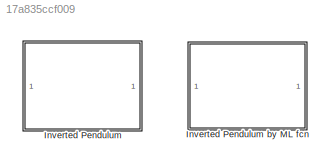
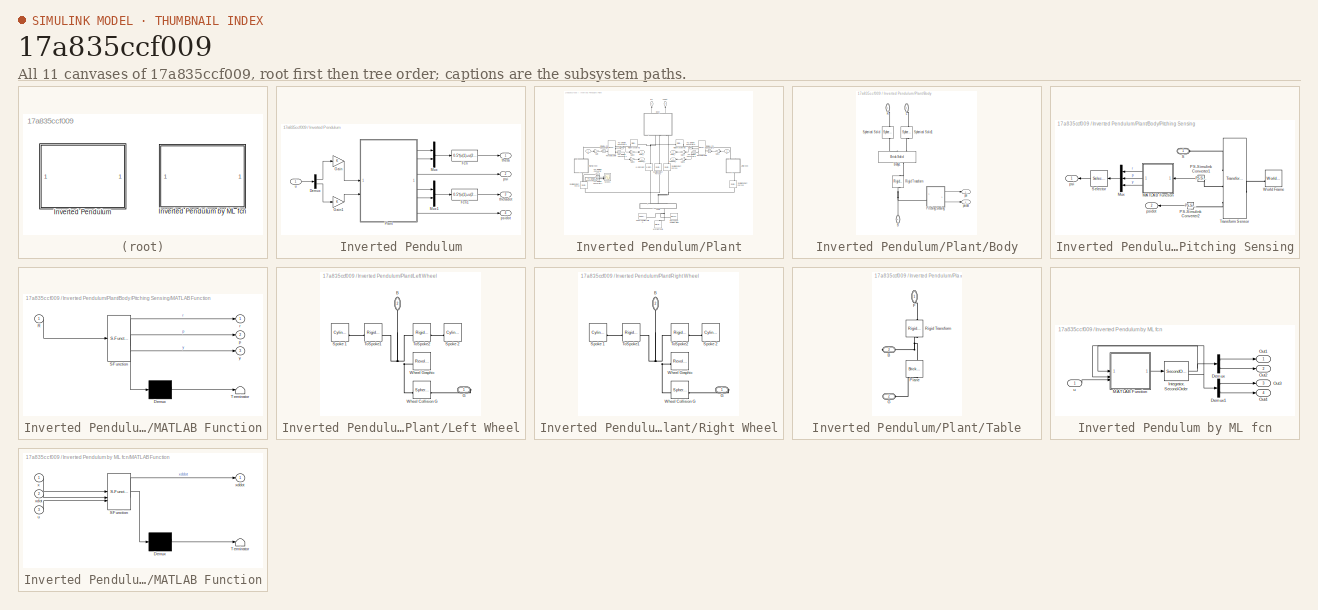
[diagram: thumbnail index - all 11 canvases of the model, root first then tree order]
MODEL slx_17a835ccf009
KIND library
CONFIG AbsTol = auto
CONFIG EnableMultiTasking = off
CONFIG FixedStep = auto
CONFIG MaxStep = auto
CONFIG MinStep = auto
CONFIG RelTol = 1e-3
CONFIG SampleTimeConstraint = Unconstrained
CONFIG SolverName = VariableStepAuto
CONFIG StartTime = 0.0
CONFIG StopTime = 10.0
BLOCK [SubSystem] Inverted Pendulum
BLOCK [SubSystem] Inverted Pendulum by ML fcn
BLOCK [Demux] Inverted Pendulum by ML fcn/Demux
  Outputs = 2
BLOCK [Demux] Inverted Pendulum by ML fcn/Demux1
  Outputs = 2
BLOCK [SecondOrderIntegrator] Inverted Pendulum by ML fcn/Integrator, Second-Order
  ICDXDT = [0;0]
  ICX = [0;psi0*pi/180]
BLOCK [SubSystem] Inverted Pendulum by ML fcn/MATLAB Function
  ErrorFcn = Stateflow.Translate.translate
  PermitHierarchicalResolution = ExplicitOnly
  SFBlockType = MATLAB Function
  TreatAsAtomicUnit = on
BLOCK [Demux] Inverted Pendulum by ML fcn/MATLAB Function/ Demux 
  Outputs = 1
BLOCK [S-Function] Inverted Pendulum by ML fcn/MATLAB Function/ SFunction 
  EnableBusSupport = off
  FunctionName = sf_sfun
  Parameters = Jpsi,Jw,K,L,R,fm,fw,g,mb,mw
  PortCounts = [3 2]
  SFcnIsStateOwnerBlock = off
  SFunctionDeploymentMode = off
  Tag = Stateflow S-Function 2
BLOCK [Terminator] Inverted Pendulum by ML fcn/MATLAB Function/ Terminator 
BLOCK [Inport] Inverted Pendulum by ML fcn/MATLAB Function/u
  Port = 3
BLOCK [Inport] Inverted Pendulum by ML fcn/MATLAB Function/x
BLOCK [Outport] Inverted Pendulum by ML fcn/MATLAB Function/xddot
BLOCK [Inport] Inverted Pendulum by ML fcn/MATLAB Function/xdot
  Port = 2
BLOCK [Outport] Inverted Pendulum by ML fcn/Out1
BLOCK [Outport] Inverted Pendulum by ML fcn/Out2
  Port = 2
BLOCK [Outport] Inverted Pendulum by ML fcn/Out3
  Port = 3
BLOCK [Outport] Inverted Pendulum by ML fcn/Out4
  Port = 4
BLOCK [Inport] Inverted Pendulum by ML fcn/u
BLOCK [Demux] Inverted Pendulum/Demux
  Outputs = 2
BLOCK [Fcn] Inverted Pendulum/Fcn
  Expr = 0.5*(u(1)+u(2))
BLOCK [Fcn] Inverted Pendulum/Fcn1
  Expr = 0.5*(u(1)+u(2))
BLOCK [Gain] Inverted Pendulum/Gain
  Gain = K
BLOCK [Gain] Inverted Pendulum/Gain1
  Gain = K
BLOCK [Mux] Inverted Pendulum/Mux
  DisplayOption = bar
  Inputs = 2
BLOCK [Mux] Inverted Pendulum/Mux1
  DisplayOption = bar
  Inputs = 2
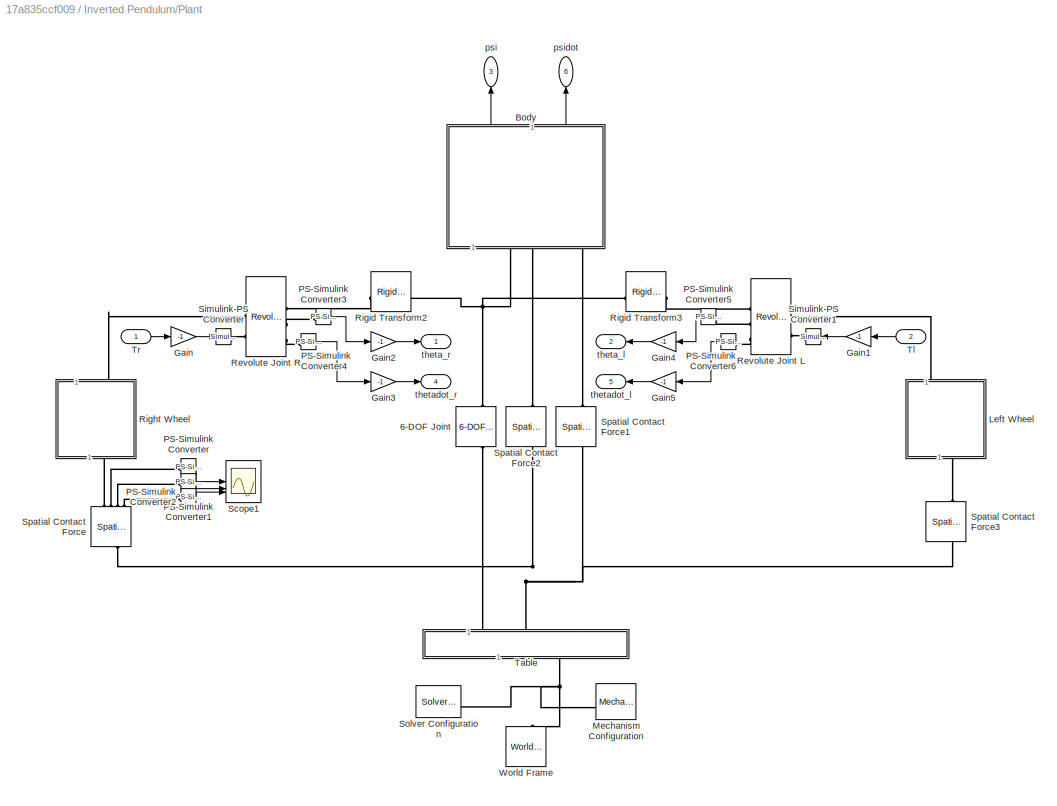
BLOCK [SubSystem] Inverted Pendulum/Plant
BLOCK [Reference] Inverted Pendulum/Plant/6-DOF Joint  REF=sm_lib/Joints/6-DOF Joint
  NameLocation = right
  SourceBlock = sm_lib/Joints/6-DOF Joint
  SourceType = 6-DOF Joint
BLOCK [SubSystem] Inverted Pendulum/Plant/Body
  NameLocation = right
BLOCK [PMIOPort] Inverted Pendulum/Plant/Body/B
  NameLocation = right
  Side = Left
BLOCK [Reference] Inverted Pendulum/Plant/Body/Body1  REF=sm_lib/Body Elements/Brick Solid
  NameLocation = left
  SourceBlock = sm_lib/Body Elements/Brick Solid
  SourceType = Brick Solid
BLOCK [PMIOPort] Inverted Pendulum/Plant/Body/L
  NameLocation = right
  Port = 3
  Side = Left
BLOCK [SubSystem] Inverted Pendulum/Plant/Body/Pitching Sensing
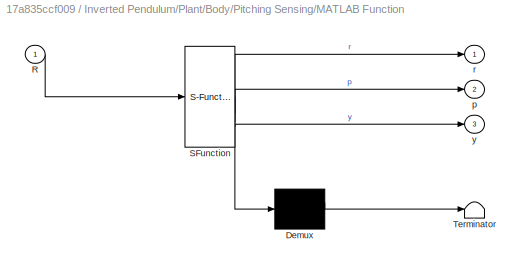
BLOCK [SubSystem] Inverted Pendulum/Plant/Body/Pitching Sensing/MATLAB Function
  ErrorFcn = Stateflow.Translate.translate
  NameLocation = top
  PermitHierarchicalResolution = ExplicitOnly
  SFBlockType = MATLAB Function
  TreatAsAtomicUnit = on
BLOCK [Demux] Inverted Pendulum/Plant/Body/Pitching Sensing/MATLAB Function/ Demux 
  Outputs = 1
BLOCK [S-Function] Inverted Pendulum/Plant/Body/Pitching Sensing/MATLAB Function/ SFunction 
  EnableBusSupport = off
  FunctionName = sf_sfun
  PortCounts = [1 4]
  SFcnIsStateOwnerBlock = off
  SFunctionDeploymentMode = off
  Tag = Stateflow S-Function 3
BLOCK [Terminator] Inverted Pendulum/Plant/Body/Pitching Sensing/MATLAB Function/ Terminator 
BLOCK [Inport] Inverted Pendulum/Plant/Body/Pitching Sensing/MATLAB Function/R
BLOCK [Outport] Inverted Pendulum/Plant/Body/Pitching Sensing/MATLAB Function/p
  Port = 2
BLOCK [Outport] Inverted Pendulum/Plant/Body/Pitching Sensing/MATLAB Function/r
BLOCK [Outport] Inverted Pendulum/Plant/Body/Pitching Sensing/MATLAB Function/y
  Port = 3
BLOCK [Mux] Inverted Pendulum/Plant/Body/Pitching Sensing/Mux
  DisplayOption = bar
  Inputs = 3
  NameLocation = top
BLOCK [Reference] Inverted Pendulum/Plant/Body/Pitching Sensing/PS-Simulink Converter1  REF=nesl_utility/PS-Simulink
Converter
  NameLocation = top
  SourceBlock = nesl_utility/PS-Simulink\nConverter
  SourceType = PS-Simulink\nConverter
BLOCK [Reference] Inverted Pendulum/Plant/Body/Pitching Sensing/PS-Simulink Converter2  REF=nesl_utility/PS-Simulink
Converter
  NameLocation = top
  SourceBlock = nesl_utility/PS-Simulink\nConverter
  SourceType = PS-Simulink\nConverter
BLOCK [PMIOPort] Inverted Pendulum/Plant/Body/Pitching Sensing/S
  Side = Left
BLOCK [Selector] Inverted Pendulum/Plant/Body/Pitching Sensing/Selector
  IndexOptions = Index vector (dialog)
  Indices = 2
  InputPortWidth = 3
  NameLocation = top
  OutputSizes = 1
BLOCK [Reference] Inverted Pendulum/Plant/Body/Pitching Sensing/Transform Sensor  REF=sm_lib/Frames and
Transforms/Transform
Sensor
  SourceBlock = sm_lib/Frames and\nTransforms/Transform\nSensor
  SourceType = Transform\nSensor
BLOCK [Reference] Inverted Pendulum/Plant/Body/Pitching Sensing/World Frame  REF=sm_lib/Frames and
Transforms/World Frame
  SourceBlock = sm_lib/Frames and\nTransforms/World Frame
  SourceType = World Frame
BLOCK [Outport] Inverted Pendulum/Plant/Body/Pitching Sensing/psi
  NameLocation = top
BLOCK [Outport] Inverted Pendulum/Plant/Body/Pitching Sensing/psidot
  Port = 2
BLOCK [PMIOPort] Inverted Pendulum/Plant/Body/R
  NameLocation = left
  Port = 2
  Side = Left
BLOCK [Reference] Inverted Pendulum/Plant/Body/Rigid Transform  REF=sm_lib/Frames and
Transforms/Rigid
Transform
  NameLocation = right
  SourceBlock = sm_lib/Frames and\nTransforms/Rigid\nTransform
  SourceType = Rigid\nTransform
BLOCK [Reference] Inverted Pendulum/Plant/Body/Spherical Solid  REF=sm_lib/Body Elements/Spherical Solid
  NameLocation = left
  SourceBlock = sm_lib/Body Elements/Spherical Solid
  SourceType = Spherical Solid
BLOCK [Reference] Inverted Pendulum/Plant/Body/Spherical Solid1  REF=sm_lib/Body Elements/Spherical Solid
  NameLocation = left
  SourceBlock = sm_lib/Body Elements/Spherical Solid
  SourceType = Spherical Solid
BLOCK [Outport] Inverted Pendulum/Plant/Body/psi
BLOCK [Outport] Inverted Pendulum/Plant/Body/psidot
  Port = 2
BLOCK [Gain] Inverted Pendulum/Plant/Gain
  Gain = -1
BLOCK [Gain] Inverted Pendulum/Plant/Gain1
  Gain = -1
BLOCK [Gain] Inverted Pendulum/Plant/Gain2
  Gain = -1
BLOCK [Gain] Inverted Pendulum/Plant/Gain3
  Gain = -1
BLOCK [Gain] Inverted Pendulum/Plant/Gain4
  Gain = -1
BLOCK [Gain] Inverted Pendulum/Plant/Gain5
  Gain = -1
BLOCK [SubSystem] Inverted Pendulum/Plant/Left Wheel
  NameLocation = right
BLOCK [PMIOPort] Inverted Pendulum/Plant/Left Wheel/B
  NameLocation = left
  Port = 2
  Side = Left
BLOCK [PMIOPort] Inverted Pendulum/Plant/Left Wheel/G
  NameLocation = top
  Side = Right
BLOCK [Reference] Inverted Pendulum/Plant/Left Wheel/Spoke 1  REF=sm_lib/Body Elements/Cylindrical Solid
  NameLocation = top
  SourceBlock = sm_lib/Body Elements/Cylindrical Solid
  SourceType = Cylindrical Solid
BLOCK [Reference] Inverted Pendulum/Plant/Left Wheel/Spoke 2  REF=sm_lib/Body Elements/Cylindrical Solid
  NameLocation = top
  SourceBlock = sm_lib/Body Elements/Cylindrical Solid
  SourceType = Cylindrical Solid
BLOCK [Reference] Inverted Pendulum/Plant/Left Wheel/ToSpoke1  REF=sm_lib/Frames and
Transforms/Rigid
Transform
  NameLocation = top
  SourceBlock = sm_lib/Frames and\nTransforms/Rigid\nTransform
  SourceType = Rigid\nTransform
BLOCK [Reference] Inverted Pendulum/Plant/Left Wheel/ToSpoke2  REF=sm_lib/Frames and
Transforms/Rigid
Transform
  NameLocation = top
  SourceBlock = sm_lib/Frames and\nTransforms/Rigid\nTransform
  SourceType = Rigid\nTransform
BLOCK [Reference] Inverted Pendulum/Plant/Left Wheel/Wheel Collision G  REF=sm_lib/Body Elements/Spherical Solid
  SourceBlock = sm_lib/Body Elements/Spherical Solid
  SourceType = Spherical Solid
BLOCK [Reference] Inverted Pendulum/Plant/Left Wheel/Wheel Graphic  REF=sm_lib/Body Elements/Revolved Solid
  NameLocation = top
  SourceBlock = sm_lib/Body Elements/Revolved Solid
  SourceType = Revolved Solid
BLOCK [Reference] Inverted Pendulum/Plant/Mechanism Configuration  REF=sm_lib/Utilities/Mechanism
Configuration
  SourceBlock = sm_lib/Utilities/Mechanism\nConfiguration
  SourceType = Mechanism\nConfiguration
BLOCK [Reference] Inverted Pendulum/Plant/PS-Simulink Converter  REF=nesl_utility/PS-Simulink
Converter
  SourceBlock = nesl_utility/PS-Simulink\nConverter
  SourceType = PS-Simulink\nConverter
BLOCK [Reference] Inverted Pendulum/Plant/PS-Simulink Converter1  REF=nesl_utility/PS-Simulink
Converter
  SourceBlock = nesl_utility/PS-Simulink\nConverter
  SourceType = PS-Simulink\nConverter
BLOCK [Reference] Inverted Pendulum/Plant/PS-Simulink Converter2  REF=nesl_utility/PS-Simulink
Converter
  SourceBlock = nesl_utility/PS-Simulink\nConverter
  SourceType = PS-Simulink\nConverter
BLOCK [Reference] Inverted Pendulum/Plant/PS-Simulink Converter3  REF=nesl_utility/PS-Simulink
Converter
  SourceBlock = nesl_utility/PS-Simulink\nConverter
  SourceType = PS-Simulink\nConverter
BLOCK [Reference] Inverted Pendulum/Plant/PS-Simulink Converter4  REF=nesl_utility/PS-Simulink
Converter
  SourceBlock = nesl_utility/PS-Simulink\nConverter
  SourceType = PS-Simulink\nConverter
BLOCK [Reference] Inverted Pendulum/Plant/PS-Simulink Converter5  REF=nesl_utility/PS-Simulink
Converter
  SourceBlock = nesl_utility/PS-Simulink\nConverter
  SourceType = PS-Simulink\nConverter
BLOCK [Reference] Inverted Pendulum/Plant/PS-Simulink Converter6  REF=nesl_utility/PS-Simulink
Converter
  SourceBlock = nesl_utility/PS-Simulink\nConverter
  SourceType = PS-Simulink\nConverter
BLOCK [Reference] Inverted Pendulum/Plant/Revolute Joint L  REF=sm_lib/Joints/Revolute Joint
  SourceBlock = sm_lib/Joints/Revolute Joint
  SourceType = Revolute Joint
BLOCK [Reference] Inverted Pendulum/Plant/Revolute Joint R  REF=sm_lib/Joints/Revolute Joint
  SourceBlock = sm_lib/Joints/Revolute Joint
  SourceType = Revolute Joint
BLOCK [SubSystem] Inverted Pendulum/Plant/Right Wheel
  NameLocation = right
BLOCK [PMIOPort] Inverted Pendulum/Plant/Right Wheel/B
  NameLocation = left
  Port = 2
  Side = Left
BLOCK [PMIOPort] Inverted Pendulum/Plant/Right Wheel/G
  NameLocation = top
  Side = Right
BLOCK [Reference] Inverted Pendulum/Plant/Right Wheel/Spoke 1  REF=sm_lib/Body Elements/Cylindrical Solid
  NameLocation = top
  SourceBlock = sm_lib/Body Elements/Cylindrical Solid
  SourceType = Cylindrical Solid
BLOCK [Reference] Inverted Pendulum/Plant/Right Wheel/Spoke 2  REF=sm_lib/Body Elements/Cylindrical Solid
  NameLocation = top
  SourceBlock = sm_lib/Body Elements/Cylindrical Solid
  SourceType = Cylindrical Solid
BLOCK [Reference] Inverted Pendulum/Plant/Right Wheel/ToSpoke1  REF=sm_lib/Frames and
Transforms/Rigid
Transform
  NameLocation = top
  SourceBlock = sm_lib/Frames and\nTransforms/Rigid\nTransform
  SourceType = Rigid\nTransform
BLOCK [Reference] Inverted Pendulum/Plant/Right Wheel/ToSpoke2  REF=sm_lib/Frames and
Transforms/Rigid
Transform
  NameLocation = top
  SourceBlock = sm_lib/Frames and\nTransforms/Rigid\nTransform
  SourceType = Rigid\nTransform
BLOCK [Reference] Inverted Pendulum/Plant/Right Wheel/Wheel Collision G  REF=sm_lib/Body Elements/Spherical Solid
  SourceBlock = sm_lib/Body Elements/Spherical Solid
  SourceType = Spherical Solid
BLOCK [Reference] Inverted Pendulum/Plant/Right Wheel/Wheel Graphic  REF=sm_lib/Body Elements/Revolved Solid
  NameLocation = top
  SourceBlock = sm_lib/Body Elements/Revolved Solid
  SourceType = Revolved Solid
BLOCK [Reference] Inverted Pendulum/Plant/Rigid Transform2  REF=sm_lib/Frames and
Transforms/Rigid
Transform
  NameLocation = top
  SourceBlock = sm_lib/Frames and\nTransforms/Rigid\nTransform
  SourceType = Rigid\nTransform
BLOCK [Reference] Inverted Pendulum/Plant/Rigid Transform3  REF=sm_lib/Frames and
Transforms/Rigid
Transform
  SourceBlock = sm_lib/Frames and\nTransforms/Rigid\nTransform
  SourceType = Rigid\nTransform
BLOCK [Scope] Inverted Pendulum/Plant/Scope1
  Floating = off
  NumInputPorts = 3
  ScopeSpecificationString = Simulink.scopes.TimeScopeBlockCfg('CurrentConfiguration', extmgr.ConfigurationSet(extmgr.Configuration('Core','General UI',true),extmgr.Configuration('Core','Source UI',true),extmgr.Configuration('Sources','WiredSimulink',true,'DataLoggingVariableName','ScopeData5'),extmgr.Configuration('Visuals','Time Domain',true,'SerializedDisplays',{struct('MinYLimReal','-0.0002','MaxYLimReal','0.00051','YLabe...<+2855ch>
BLOCK [Reference] Inverted Pendulum/Plant/Simulink-PS Converter  REF=nesl_utility/Simulink-PS
Converter
  SourceBlock = nesl_utility/Simulink-PS\nConverter
  SourceType = Simulink-PS\nConverter
BLOCK [Reference] Inverted Pendulum/Plant/Simulink-PS Converter1  REF=nesl_utility/Simulink-PS
Converter
  SourceBlock = nesl_utility/Simulink-PS\nConverter
  SourceType = Simulink-PS\nConverter
BLOCK [Reference] Inverted Pendulum/Plant/Solver Configuration  REF=nesl_utility/Solver
Configuration
  SourceBlock = nesl_utility/Solver\nConfiguration
  SourceType = Solver\nConfiguration
BLOCK [Reference] Inverted Pendulum/Plant/Spatial Contact Force  REF=sm_lib/Forces and
Torques/Spatial
Contact Force
  NameLocation = right
  SourceBlock = sm_lib/Forces and\nTorques/Spatial\nContact Force
  SourceType = Spatial\nContact Force
BLOCK [Reference] Inverted Pendulum/Plant/Spatial Contact Force1  REF=sm_lib/Forces and
Torques/Spatial
Contact Force
  NameLocation = right
  SourceBlock = sm_lib/Forces and\nTorques/Spatial\nContact Force
  SourceType = Spatial\nContact Force
BLOCK [Reference] Inverted Pendulum/Plant/Spatial Contact Force2  REF=sm_lib/Forces and
Torques/Spatial
Contact Force
  NameLocation = right
  SourceBlock = sm_lib/Forces and\nTorques/Spatial\nContact Force
  SourceType = Spatial\nContact Force
BLOCK [Reference] Inverted Pendulum/Plant/Spatial Contact Force3  REF=sm_lib/Forces and
Torques/Spatial
Contact Force
  NameLocation = right
  SourceBlock = sm_lib/Forces and\nTorques/Spatial\nContact Force
  SourceType = Spatial\nContact Force
BLOCK [SubSystem] Inverted Pendulum/Plant/Table
  NameLocation = left
  Tag = CustomStyle
BLOCK [PMIOPort] Inverted Pendulum/Plant/Table/B
  NameLocation = top
  Port = 3
  Side = Right
BLOCK [PMIOPort] Inverted Pendulum/Plant/Table/F
  NameLocation = left
  Side = Left
BLOCK [PMIOPort] Inverted Pendulum/Plant/Table/G
  NameLocation = top
  Port = 2
  Side = Left
BLOCK [Reference] Inverted Pendulum/Plant/Table/Plane  REF=sm_lib/Body Elements/Brick Solid
  NameLocation = right
  SourceBlock = sm_lib/Body Elements/Brick Solid
  SourceType = Brick Solid
BLOCK [Reference] Inverted Pendulum/Plant/Table/Rigid Transform  REF=sm_lib/Frames and
Transforms/Rigid
Transform
  NameLocation = right
  SourceBlock = sm_lib/Frames and\nTransforms/Rigid\nTransform
  SourceType = Rigid\nTransform
BLOCK [Inport] Inverted Pendulum/Plant/Tl
  Port = 2
BLOCK [Inport] Inverted Pendulum/Plant/Tr
BLOCK [Reference] Inverted Pendulum/Plant/World Frame  REF=sm_lib/Frames and
Transforms/World Frame
  NameLocation = left
  SourceBlock = sm_lib/Frames and\nTransforms/World Frame
  SourceType = World Frame
BLOCK [Outport] Inverted Pendulum/Plant/psi
  NameLocation = right
  Port = 3
BLOCK [Outport] Inverted Pendulum/Plant/psidot
  NameLocation = right
  Port = 6
BLOCK [Outport] Inverted Pendulum/Plant/theta_l
  Port = 2
BLOCK [Outport] Inverted Pendulum/Plant/theta_r
BLOCK [Outport] Inverted Pendulum/Plant/thetadot_l
  Port = 5
BLOCK [Outport] Inverted Pendulum/Plant/thetadot_r
  Port = 4
BLOCK [Outport] Inverted Pendulum/psi
  Port = 2
BLOCK [Outport] Inverted Pendulum/psidot
  Port = 4
BLOCK [Outport] Inverted Pendulum/theta
BLOCK [Outport] Inverted Pendulum/thetadot
  Port = 3
BLOCK [Inport] Inverted Pendulum/u
LINE Inverted Pendulum by ML fcn/Demux1:1 -> Inverted Pendulum by ML fcn/Out3:1
LINE Inverted Pendulum by ML fcn/Demux1:2 -> Inverted Pendulum by ML fcn/Out4:1
LINE Inverted Pendulum by ML fcn/Demux:1 -> Inverted Pendulum by ML fcn/Out1:1
LINE Inverted Pendulum by ML fcn/Demux:2 -> Inverted Pendulum by ML fcn/Out2:1
NET Inverted Pendulum by ML fcn/Integrator, Second-Order:1 -> Inverted Pendulum by ML fcn/Demux:1, Inverted Pendulum by ML fcn/MATLAB Function:1
NET Inverted Pendulum by ML fcn/Integrator, Second-Order:2 -> Inverted Pendulum by ML fcn/Demux1:1, Inverted Pendulum by ML fcn/MATLAB Function:2
LINE Inverted Pendulum by ML fcn/MATLAB Function:1 -> Inverted Pendulum by ML fcn/Integrator, Second-Order:1
LINE Inverted Pendulum by ML fcn/u:1 -> Inverted Pendulum by ML fcn/MATLAB Function:3
LINE Inverted Pendulum/Demux:1 -> Inverted Pendulum/Gain:1
LINE Inverted Pendulum/Demux:2 -> Inverted Pendulum/Gain1:1
LINE Inverted Pendulum/Fcn1:1 -> Inverted Pendulum/thetadot:1
LINE Inverted Pendulum/Fcn:1 -> Inverted Pendulum/theta:1
LINE Inverted Pendulum/Gain1:1 -> Inverted Pendulum/Plant:2
LINE Inverted Pendulum/Gain:1 -> Inverted Pendulum/Plant:1
LINE Inverted Pendulum/Mux1:1 -> Inverted Pendulum/Fcn1:1
LINE Inverted Pendulum/Mux:1 -> Inverted Pendulum/Fcn:1
LINE Inverted Pendulum/Plant/Body/Pitching Sensing/MATLAB Function:1 -> Inverted Pendulum/Plant/Body/Pitching Sensing/Mux:1
LINE Inverted Pendulum/Plant/Body/Pitching Sensing/MATLAB Function:2 -> Inverted Pendulum/Plant/Body/Pitching Sensing/Mux:2
LINE Inverted Pendulum/Plant/Body/Pitching Sensing/MATLAB Function:3 -> Inverted Pendulum/Plant/Body/Pitching Sensing/Mux:3
LINE Inverted Pendulum/Plant/Body/Pitching Sensing/Mux:1 -> Inverted Pendulum/Plant/Body/Pitching Sensing/Selector:1
LINE Inverted Pendulum/Plant/Body/Pitching Sensing/PS-Simulink Converter1:1 -> Inverted Pendulum/Plant/Body/Pitching Sensing/MATLAB Function:1
LINE Inverted Pendulum/Plant/Body/Pitching Sensing/PS-Simulink Converter2:1 -> Inverted Pendulum/Plant/Body/Pitching Sensing/psidot:1
LINE Inverted Pendulum/Plant/Body/Pitching Sensing/Selector:1 -> Inverted Pendulum/Plant/Body/Pitching Sensing/psi:1
LINE Inverted Pendulum/Plant/Body/Pitching Sensing:1 -> Inverted Pendulum/Plant/Body/psi:1
LINE Inverted Pendulum/Plant/Body/Pitching Sensing:2 -> Inverted Pendulum/Plant/Body/psidot:1
LINE Inverted Pendulum/Plant/Body:1 -> Inverted Pendulum/Plant/psi:1
LINE Inverted Pendulum/Plant/Body:2 -> Inverted Pendulum/Plant/psidot:1
LINE Inverted Pendulum/Plant/Gain1:1 -> Inverted Pendulum/Plant/Simulink-PS Converter1:1
LINE Inverted Pendulum/Plant/Gain2:1 -> Inverted Pendulum/Plant/theta_r:1
LINE Inverted Pendulum/Plant/Gain3:1 -> Inverted Pendulum/Plant/thetadot_r:1
LINE Inverted Pendulum/Plant/Gain4:1 -> Inverted Pendulum/Plant/theta_l:1
LINE Inverted Pendulum/Plant/Gain5:1 -> Inverted Pendulum/Plant/thetadot_l:1
LINE Inverted Pendulum/Plant/Gain:1 -> Inverted Pendulum/Plant/Simulink-PS Converter:1
LINE Inverted Pendulum/Plant/PS-Simulink Converter1:1 -> Inverted Pendulum/Plant/Scope1:2
LINE Inverted Pendulum/Plant/PS-Simulink Converter2:1 -> Inverted Pendulum/Plant/Scope1:3
LINE Inverted Pendulum/Plant/PS-Simulink Converter3:1 -> Inverted Pendulum/Plant/Gain2:1
LINE Inverted Pendulum/Plant/PS-Simulink Converter4:1 -> Inverted Pendulum/Plant/Gain3:1
LINE Inverted Pendulum/Plant/PS-Simulink Converter5:1 -> Inverted Pendulum/Plant/Gain4:1
LINE Inverted Pendulum/Plant/PS-Simulink Converter6:1 -> Inverted Pendulum/Plant/Gain5:1
LINE Inverted Pendulum/Plant/PS-Simulink Converter:1 -> Inverted Pendulum/Plant/Scope1:1
LINE Inverted Pendulum/Plant/Tl:1 -> Inverted Pendulum/Plant/Gain1:1
LINE Inverted Pendulum/Plant/Tr:1 -> Inverted Pendulum/Plant/Gain:1
LINE Inverted Pendulum/Plant:1 -> Inverted Pendulum/Mux:1
LINE Inverted Pendulum/Plant:2 -> Inverted Pendulum/Mux:2
LINE Inverted Pendulum/Plant:3 -> Inverted Pendulum/psi:1
LINE Inverted Pendulum/Plant:4 -> Inverted Pendulum/Mux1:1
LINE Inverted Pendulum/Plant:5 -> Inverted Pendulum/Mux1:2
LINE Inverted Pendulum/Plant:6 -> Inverted Pendulum/psidot:1
LINE Inverted Pendulum/u:1 -> Inverted Pendulum/Demux:1
PLINE Inverted Pendulum/Plant/6-DOF Joint:LConn1 -- Inverted Pendulum/Plant/Table:LConn1
PNET net1: Inverted Pendulum/Plant/6-DOF Joint:RConn1 -- Inverted Pendulum/Plant/Body:LConn1 -- Inverted Pendulum/Plant/Rigid Transform2:LConn1 -- Inverted Pendulum/Plant/Rigid Transform3:LConn1
PNET net2: Inverted Pendulum/Plant/Body/B:RConn1 -- Inverted Pendulum/Plant/Body/Pitching Sensing:LConn1 -- Inverted Pendulum/Plant/Body/Rigid Transform:LConn1
PLINE Inverted Pendulum/Plant/Body/Body1:LConn1 -- Inverted Pendulum/Plant/Body/Spherical Solid:RConn1
PLINE Inverted Pendulum/Plant/Body/Body1:LConn2 -- Inverted Pendulum/Plant/Body/Spherical Solid1:RConn1
PLINE Inverted Pendulum/Plant/Body/Body1:RConn1 -- Inverted Pendulum/Plant/Body/Rigid Transform:RConn1
PLINE Inverted Pendulum/Plant/Body/L:RConn1 -- Inverted Pendulum/Plant/Body/Spherical Solid1:LConn1
PLINE Inverted Pendulum/Plant/Body/Pitching Sensing/PS-Simulink Converter1:LConn1 -- Inverted Pendulum/Plant/Body/Pitching Sensing/Transform Sensor:RConn2
PLINE Inverted Pendulum/Plant/Body/Pitching Sensing/PS-Simulink Converter2:LConn1 -- Inverted Pendulum/Plant/Body/Pitching Sensing/Transform Sensor:RConn3
PLINE Inverted Pendulum/Plant/Body/Pitching Sensing/S:RConn1 -- Inverted Pendulum/Plant/Body/Pitching Sensing/Transform Sensor:RConn1
PLINE Inverted Pendulum/Plant/Body/Pitching Sensing/Transform Sensor:LConn1 -- Inverted Pendulum/Plant/Body/Pitching Sensing/World Frame:RConn1
PLINE Inverted Pendulum/Plant/Body/R:RConn1 -- Inverted Pendulum/Plant/Body/Spherical Solid:LConn1
PLINE Inverted Pendulum/Plant/Body:LConn2 -- Inverted Pendulum/Plant/Spatial Contact Force2:RConn1
PLINE Inverted Pendulum/Plant/Body:LConn3 -- Inverted Pendulum/Plant/Spatial Contact Force1:RConn1
PNET net3: Inverted Pendulum/Plant/Left Wheel/B:RConn1 -- Inverted Pendulum/Plant/Left Wheel/ToSpoke1:LConn1 -- Inverted Pendulum/Plant/Left Wheel/ToSpoke2:LConn1 -- Inverted Pendulum/Plant/Left Wheel/Wheel Collision G:RConn1 -- Inverted Pendulum/Plant/Left Wheel/Wheel Graphic:RConn1
PLINE Inverted Pendulum/Plant/Left Wheel/G:RConn1 -- Inverted Pendulum/Plant/Left Wheel/Wheel Collision G:LConn1
PLINE Inverted Pendulum/Plant/Left Wheel/Spoke 1:RConn1 -- Inverted Pendulum/Plant/Left Wheel/ToSpoke1:RConn1
PLINE Inverted Pendulum/Plant/Left Wheel/Spoke 2:RConn1 -- Inverted Pendulum/Plant/Left Wheel/ToSpoke2:RConn1
PLINE Inverted Pendulum/Plant/Left Wheel:LConn1 -- Inverted Pendulum/Plant/Revolute Joint L:LConn1
PLINE Inverted Pendulum/Plant/Left Wheel:RConn1 -- Inverted Pendulum/Plant/Spatial Contact Force3:RConn1
PNET net4: Inverted Pendulum/Plant/Mechanism Configuration:RConn1 -- Inverted Pendulum/Plant/Solver Configuration:RConn1 -- Inverted Pendulum/Plant/Table:RConn1 -- Inverted Pendulum/Plant/World Frame:RConn1
PLINE Inverted Pendulum/Plant/PS-Simulink Converter1:LConn1 -- Inverted Pendulum/Plant/Spatial Contact Force:RConn3
PLINE Inverted Pendulum/Plant/PS-Simulink Converter2:LConn1 -- Inverted Pendulum/Plant/Spatial Contact Force:RConn4
PLINE Inverted Pendulum/Plant/PS-Simulink Converter3:LConn1 -- Inverted Pendulum/Plant/Revolute Joint R:RConn2
PLINE Inverted Pendulum/Plant/PS-Simulink Converter4:LConn1 -- Inverted Pendulum/Plant/Revolute Joint R:RConn3
PLINE Inverted Pendulum/Plant/PS-Simulink Converter5:LConn1 -- Inverted Pendulum/Plant/Revolute Joint L:RConn2
PLINE Inverted Pendulum/Plant/PS-Simulink Converter6:LConn1 -- Inverted Pendulum/Plant/Revolute Joint L:RConn3
PLINE Inverted Pendulum/Plant/PS-Simulink Converter:LConn1 -- Inverted Pendulum/Plant/Spatial Contact Force:RConn2
PLINE Inverted Pendulum/Plant/Revolute Joint L:LConn2 -- Inverted Pendulum/Plant/Simulink-PS Converter1:RConn1
PLINE Inverted Pendulum/Plant/Revolute Joint L:RConn1 -- Inverted Pendulum/Plant/Rigid Transform3:RConn1
PLINE Inverted Pendulum/Plant/Revolute Joint R:LConn1 -- Inverted Pendulum/Plant/Right Wheel:LConn1
PLINE Inverted Pendulum/Plant/Revolute Joint R:LConn2 -- Inverted Pendulum/Plant/Simulink-PS Converter:RConn1
PLINE Inverted Pendulum/Plant/Revolute Joint R:RConn1 -- Inverted Pendulum/Plant/Rigid Transform2:RConn1
PNET net5: Inverted Pendulum/Plant/Right Wheel/B:RConn1 -- Inverted Pendulum/Plant/Right Wheel/ToSpoke1:LConn1 -- Inverted Pendulum/Plant/Right Wheel/ToSpoke2:LConn1 -- Inverted Pendulum/Plant/Right Wheel/Wheel Collision G:RConn1 -- Inverted Pendulum/Plant/Right Wheel/Wheel Graphic:RConn1
PLINE Inverted Pendulum/Plant/Right Wheel/G:RConn1 -- Inverted Pendulum/Plant/Right Wheel/Wheel Collision G:LConn1
PLINE Inverted Pendulum/Plant/Right Wheel/Spoke 1:RConn1 -- Inverted Pendulum/Plant/Right Wheel/ToSpoke1:RConn1
PLINE Inverted Pendulum/Plant/Right Wheel/Spoke 2:RConn1 -- Inverted Pendulum/Plant/Right Wheel/ToSpoke2:RConn1
PLINE Inverted Pendulum/Plant/Right Wheel:RConn1 -- Inverted Pendulum/Plant/Spatial Contact Force:RConn1
PNET net6: Inverted Pendulum/Plant/Spatial Contact Force1:LConn1 -- Inverted Pendulum/Plant/Spatial Contact Force2:LConn1 -- Inverted Pendulum/Plant/Spatial Contact Force3:LConn1 -- Inverted Pendulum/Plant/Spatial Contact Force:LConn1 -- Inverted Pendulum/Plant/Table:LConn2
PNET net7: Inverted Pendulum/Plant/Table/B:RConn1 -- Inverted Pendulum/Plant/Table/Plane:RConn1 -- Inverted Pendulum/Plant/Table/Rigid Transform:LConn1
PLINE Inverted Pendulum/Plant/Table/F:RConn1 -- Inverted Pendulum/Plant/Table/Rigid Transform:RConn1
PLINE Inverted Pendulum/Plant/Table/G:RConn1 -- Inverted Pendulum/Plant/Table/Plane:LConn1
note: NET lines group one-source signal fan-out (src -> all destinations, sorted); 1:1 wires keep LINE; PNET lines group multi-terminal physical nets as a canonical sorted terminal list (undirected conserving connections); 2-terminal nets keep the pairwise PLINE form
CHART Inverted Pendulum by ML fcn/MATLAB Function states=1 transitions=1
  STATE_LABEL 'eML_blk_kernel()'
  STATE_LABEL 'SCRIPT:\nfunction xddot = fcn(x,xdot,u,Jpsi,Jw,L,mb,R,fm,fw,g,mw,K)\nil = u(1);\nir = u(2);\npsi = x(2);\ntheta_dot = xdot(1);\npsi_dot = xdot(2);\nxddot = nlStateFcn(Jpsi,Jw,K,L,mb,R,fm,fw,g,il,ir,mw,psi,psi_dot,theta_dot);\n'
CHART Inverted Pendulum/Plant/Body/Pitching Sensing/MATLAB Function states=1 transitions=1
  STATE_LABEL 'eML_blk_kernel()'
  STATE_LABEL 'SCRIPT:\nfunction [r,p,y] = fcn(R)\n%Rotation matrix to Euler angle\ny = atan2(R(2,1),R(1,1));\np = atan2(-R(3,1),sqrt(R(3,2)^2+R(3,3)^2));\nr = atan2(R(3,2),R(3,3));\n\n'
CHART  states=0 transitions=0
CHART  states=0 transitions=0
